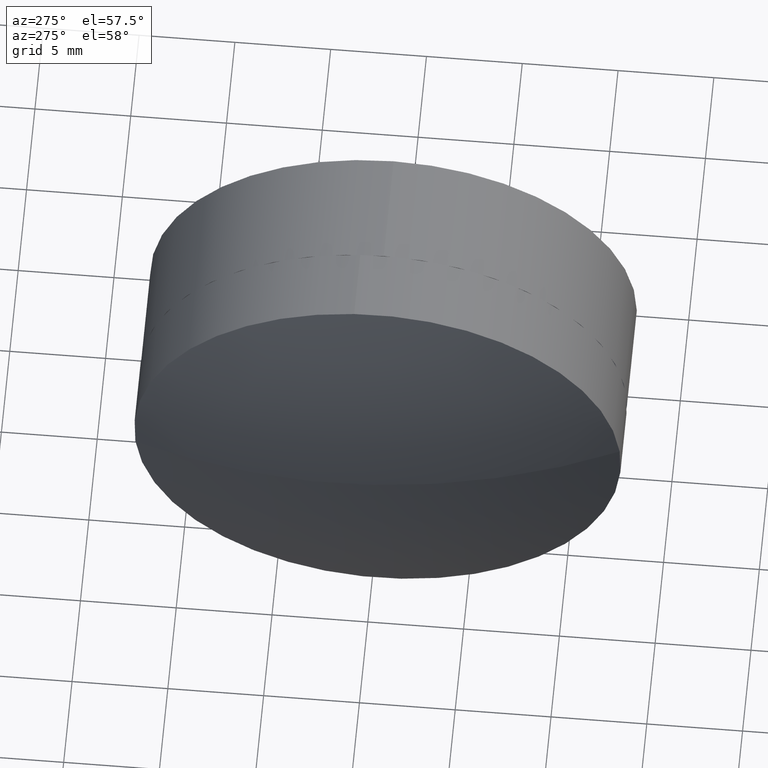
[diagram: clean part render]
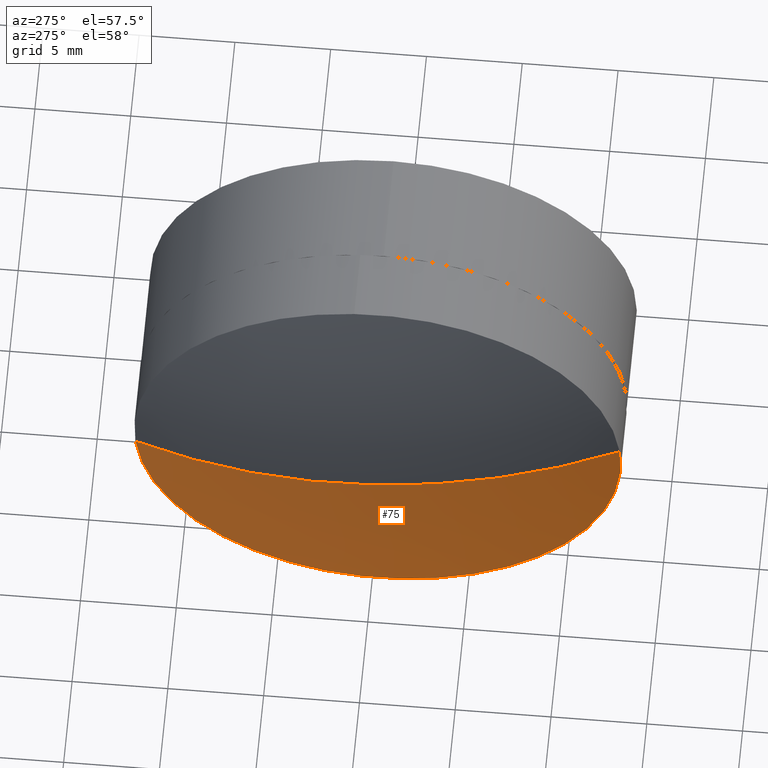
[diagram: same view with one face highlighted and labeled with its STEP entity id]
A machine part, auxiliary view. The second image highlights one B-rep face of the part: STEP entity #75.
In plain terms, the highlighted spherical surface has radius 34.93 mm.
Its self-contained STEP definition (entity closure, byte-faithful):
#2 = CARTESIAN_POINT ( 'NONE',  ( -77.59359883042631623, 28.48110664956988103, -12.64106487517395472 ) ) ;
#15 = ORIENTED_EDGE ( 'NONE', *, *, #439, .F. ) ;
#35 = DIRECTION ( 'NONE',  ( 0.000000000000000000, 0.9953594389900750627, -0.09622674894935842604 ) ) ;
#59 = AXIS2_PLACEMENT_3D ( 'NONE', #220, #278, #35 ) ;
#64 = CIRCLE ( 'NONE', #59, 34.93000000000004945 ) ;
#75 = ADVANCED_FACE ( 'NONE', ( #407 ), #239, .T. ) ;
#100 = EDGE_LOOP ( 'NONE', ( #123, #206, #341, #15 ) ) ;
#101 = VERTEX_POINT ( 'NONE', #304 ) ;
#111 = AXIS2_PLACEMENT_3D ( 'NONE', #219, #447, #354 ) ;
#117 = DIRECTION ( 'NONE',  ( 0.000000000000000000, 0.09622674894935845380, 0.9953594389900752848 ) ) ;
#123 = ORIENTED_EDGE ( 'NONE', *, *, #213, .T. ) ;
#134 = VERTEX_POINT ( 'NONE', #413 ) ;
#136 = CARTESIAN_POINT ( 'NONE',  ( -45.05416275664025960, 29.70318636122672729, -8.252455909085797717E-16 ) ) ;
#181 = DIRECTION ( 'NONE',  ( 0.000000000000000000, 0.09622674894935845380, 0.9953594389900752848 ) ) ;
#206 = ORIENTED_EDGE ( 'NONE', *, *, #319, .T. ) ;
#208 = CIRCLE ( 'NONE', #335, 12.70000000000000107 ) ;
#210 = VERTEX_POINT ( 'NONE', #2 ) ;
#213 = EDGE_CURVE ( 'NONE', #101, #210, #208, .T. ) ;
#218 = CARTESIAN_POINT ( 'NONE',  ( -77.59359883042631623, 17.06212148605288448, 1.222079711656841816 ) ) ;
#219 = CARTESIAN_POINT ( 'NONE',  ( -45.05416275664025960, 29.70318636122672729, -8.252455909085797717E-16 ) ) ;
#220 = CARTESIAN_POINT ( 'NONE',  ( -45.05416275664025960, 29.70318636122672729, -8.252455909085797717E-16 ) ) ;
#239 = SPHERICAL_SURFACE ( 'NONE', #284, 34.93000000000004235 ) ;
#246 = DIRECTION ( 'NONE',  ( -1.000000000000000000, 2.569559148790645509E-17, 4.163336342344337027E-17 ) ) ;
#251 = CARTESIAN_POINT ( 'NONE',  ( -77.59359883042631623, 29.70318636122673084, 5.294805767452579913E-16 ) ) ;
#263 = VERTEX_POINT ( 'NONE', #218 ) ;
#272 = DIRECTION ( 'NONE',  ( -4.391276449164055102E-17, -0.09622674894935855094, -0.9953594389900750627 ) ) ;
#277 = DIRECTION ( 'NONE',  ( 0.000000000000000000, 0.9953594389900750627, -0.09622674894935855094 ) ) ;
#278 = DIRECTION ( 'NONE',  ( -4.391276449164055718E-17, -0.09622674894935843992, -0.9953594389900751738 ) ) ;
#282 = CARTESIAN_POINT ( 'NONE',  ( -77.59359883042631623, 29.70318636122673084, 5.294805767452579913E-16 ) ) ;
#284 = AXIS2_PLACEMENT_3D ( 'NONE', #136, #272, #277 ) ;
#304 = CARTESIAN_POINT ( 'NONE',  ( -77.59359883042631623, 42.34425123640058075, -1.222079711656842482 ) ) ;
#315 = CIRCLE ( 'NONE', #111, 34.93000000000004945 ) ;
#319 = EDGE_CURVE ( 'NONE', #210, #263, #438, .T. ) ;
#335 = AXIS2_PLACEMENT_3D ( 'NONE', #251, #359, #117 ) ;
#337 = EDGE_CURVE ( 'NONE', #263, #134, #64, .T. ) ;
#341 = ORIENTED_EDGE ( 'NONE', *, *, #337, .T. ) ;
#354 = DIRECTION ( 'NONE',  ( 0.000000000000000000, -0.9953594389900750627, 0.09622674894935855094 ) ) ;
#359 = DIRECTION ( 'NONE',  ( -1.000000000000000000, 2.569559148790645509E-17, 4.163336342344337027E-17 ) ) ;
#383 = AXIS2_PLACEMENT_3D ( 'NONE', #282, #246, #181 ) ;
#407 = FACE_OUTER_BOUND ( 'NONE', #100, .T. ) ;
#413 = CARTESIAN_POINT ( 'NONE',  ( -79.98416275664030195, 29.70318636122673084, 4.231936315395461855E-16 ) ) ;
#438 = CIRCLE ( 'NONE', #383, 12.70000000000000107 ) ;
#439 = EDGE_CURVE ( 'NONE', #101, #134, #315, .T. ) ;
#447 = DIRECTION ( 'NONE',  ( 4.391276449164055718E-17, 0.09622674894935856482, 0.9953594389900751738 ) ) ;